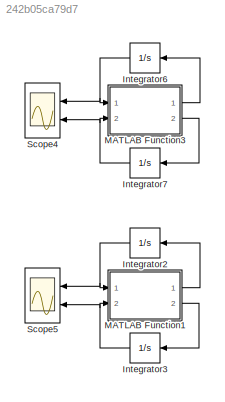
MODEL slx_242b05ca79d7
KIND model
CONFIG AbsTol = auto
CONFIG EnableMultiTasking = off
CONFIG FixedStep = auto
CONFIG MaxStep = auto
CONFIG MinStep = auto
CONFIG RelTol = 1e-3
CONFIG SampleTimeConstraint = Unconstrained
CONFIG SolverName = VariableStepAuto
CONFIG StartTime = 0.0
CONFIG StopTime = 30
BLOCK [Integrator] Integrator2
  InitialCondition = 3
  Ports = [1, 1]
BLOCK [Integrator] Integrator3
  InitialCondition = 5
  Ports = [1, 1]
BLOCK [Integrator] Integrator6
  InitialCondition = 3
  Ports = [1, 1]
BLOCK [Integrator] Integrator7
  InitialCondition = 5
  Ports = [1, 1]
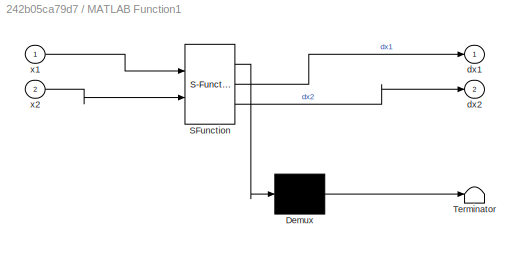
BLOCK [SubSystem] MATLAB Function1
  ErrorFcn = Stateflow.Translate.translate
  PermitHierarchicalResolution = ExplicitOnly
  Ports = [2, 2]
  RequestExecContextInheritance = off
  SFBlockType = MATLAB Function
  TreatAsAtomicUnit = on
BLOCK [Demux] MATLAB Function1/ Demux 
  Outputs = 1
  Ports = [1, 1]
BLOCK [S-Function] MATLAB Function1/ SFunction 
  EnableBusSupport = on
  FunctionName = sf_sfun
  PortCounts = [2 3]
  Ports = [2, 3]
  SFcnIsStateOwnerBlock = off
  SFunctionDeploymentMode = off
  Tag = Stateflow S-Function 1
BLOCK [Terminator] MATLAB Function1/ Terminator 
BLOCK [Outport] MATLAB Function1/dx1
BLOCK [Outport] MATLAB Function1/dx2
  Port = 2
BLOCK [Inport] MATLAB Function1/x1
BLOCK [Inport] MATLAB Function1/x2
  Port = 2
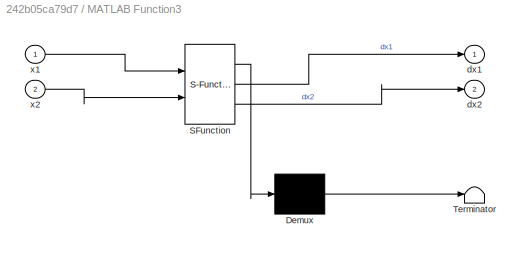
BLOCK [SubSystem] MATLAB Function3
  ErrorFcn = Stateflow.Translate.translate
  PermitHierarchicalResolution = ExplicitOnly
  Ports = [2, 2]
  RequestExecContextInheritance = off
  SFBlockType = MATLAB Function
  TreatAsAtomicUnit = on
BLOCK [Demux] MATLAB Function3/ Demux 
  Outputs = 1
  Ports = [1, 1]
BLOCK [S-Function] MATLAB Function3/ SFunction 
  EnableBusSupport = on
  FunctionName = sf_sfun
  PortCounts = [2 3]
  Ports = [2, 3]
  SFcnIsStateOwnerBlock = off
  SFunctionDeploymentMode = off
  Tag = Stateflow S-Function 4
BLOCK [Terminator] MATLAB Function3/ Terminator 
BLOCK [Outport] MATLAB Function3/dx1
BLOCK [Outport] MATLAB Function3/dx2
  Port = 2
BLOCK [Inport] MATLAB Function3/x1
BLOCK [Inport] MATLAB Function3/x2
  Port = 2
BLOCK [Scope] Scope4
  Floating = off
  NumInputPorts = 2
  Ports = [2]
  ScopeSpecificationString = Simulink.scopes.TimeScopeBlockCfg('CurrentConfiguration', extmgr.ConfigurationSet(extmgr.Configuration('Core','General UI',true),extmgr.Configuration('Core','Source UI',true),extmgr.Configuration('Sources','WiredSimulink',true),extmgr.Configuration('Visuals','Time Domain',true,'SerializedDisplays',{struct('MinYLimReal','-2.40776','MaxYLimReal','5.82308','YLabelReal','','MinYLimMag','0.00000','MaxY...<+1450ch>
BLOCK [Scope] Scope5
  Floating = off
  NumInputPorts = 2
  Ports = [2]
  ScopeSpecificationString = Simulink.scopes.TimeScopeBlockCfg('CurrentConfiguration', extmgr.ConfigurationSet(extmgr.Configuration('Core','General UI',true),extmgr.Configuration('Core','Source UI',true),extmgr.Configuration('Sources','WiredSimulink',true,'DataLoggingVariableName','ScopeData4'),extmgr.Configuration('Visuals','Time Domain',true,'SerializedDisplays',{struct('MinYLimReal','-2.40776','MaxYLimReal','5.82308','YLab...<+1489ch>
NET Integrator2:1 -> MATLAB Function1:1, Scope5:1
NET Integrator3:1 -> MATLAB Function1:2, Scope5:2
NET Integrator6:1 -> MATLAB Function3:1, Scope4:1
NET Integrator7:1 -> MATLAB Function3:2, Scope4:2
LINE MATLAB Function1:1 -> Integrator2:1
LINE MATLAB Function1:2 -> Integrator3:1
LINE MATLAB Function3:1 -> Integrator6:1
LINE MATLAB Function3:2 -> Integrator7:1
note: NET lines group one-source signal fan-out (src -> all destinations, sorted); 1:1 wires keep LINE
CHART MATLAB Function3 states=1 transitions=1
  STATE_LABEL 'eML_blk_kernel()'
  STATE_LABEL 'SCRIPT:\nfunction [dx1,dx2] = fcn2(x1,x2)\nc=100;\ndx1=-tanh(c*x1)+2*tanh(c*x2);\ndx2=-2*tanh(c*x1)-tanh(c*x2);\n'
CHART MATLAB Function1 states=1 transitions=1
  STATE_LABEL 'eML_blk_kernel()'
  STATE_LABEL 'SCRIPT:\nfunction [dx1,dx2] = fcn3(x1,x2)\nc=1;\ndx1=-sign(c*x1)+2*sign(c*x2);\ndx2=-2*sign(c*x1)-sign(c*x2);\n'
CHART  states=0 transitions=0
CHART  states=0 transitions=0
